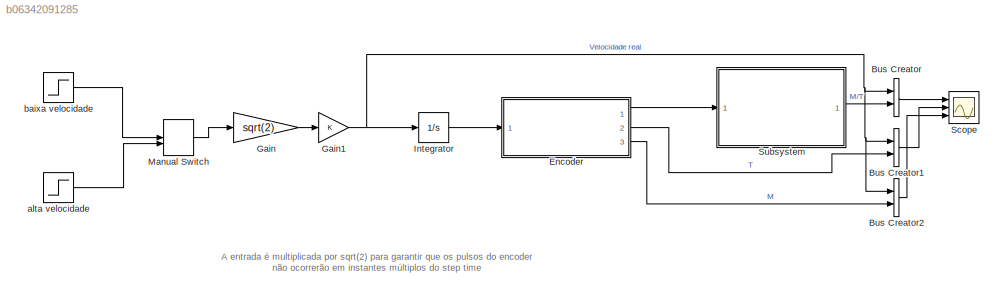
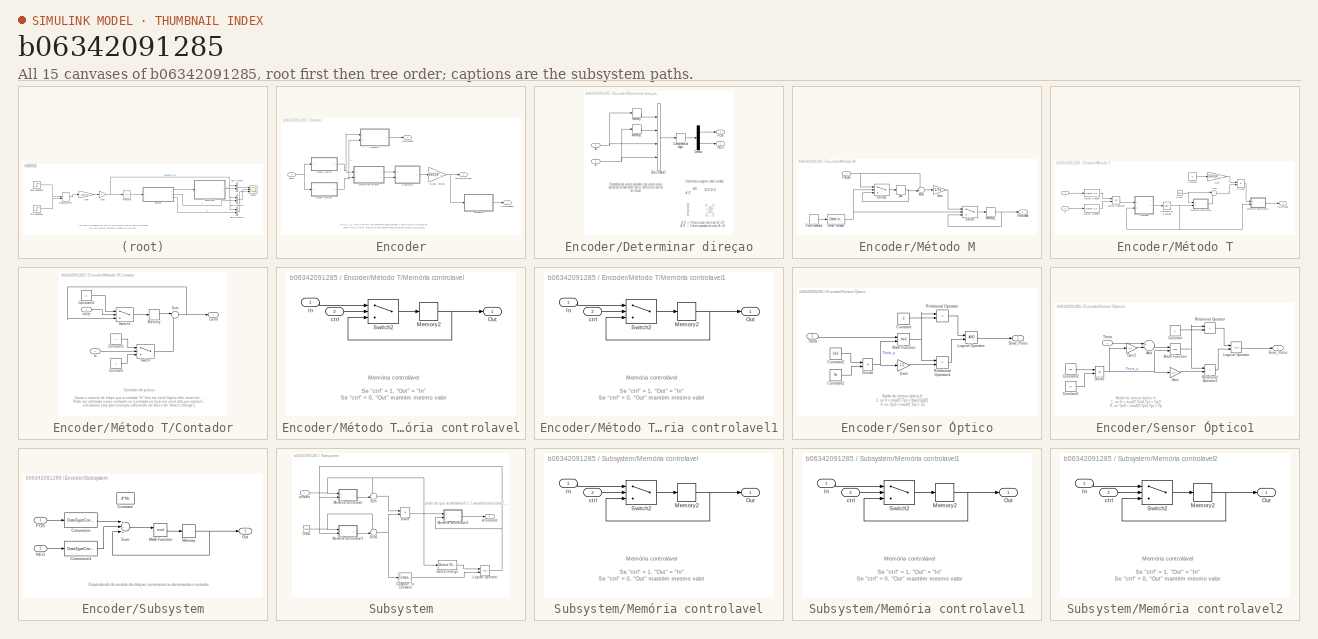
[diagram: thumbnail index - all 15 canvases of the model, root first then tree order]
MODEL slx_b06342091285
KIND model
BLOCK [BusCreator] Bus Creator
  DisplayOption = bar
  Inputs = 2
  Ports = [2, 1]
BLOCK [BusCreator] Bus Creator1
  DisplayOption = bar
  Inputs = 2
  Ports = [2, 1]
BLOCK [BusCreator] Bus Creator2
  DisplayOption = bar
  Inputs = 2
  Ports = [2, 1]
BLOCK [SubSystem] Encoder
  FunctionWithSeparateData = off
  MaskHideContents = off
  MinAlgLoopOccurrences = off
  Opaque = off
  Ports = [1, 3]
  PropExecContextOutsideSubsystem = off
  RTWSystemCode = Auto
  RequestExecContextInheritance = off
BLOCK [SubSystem] Encoder/Determinar direçao
  FunctionWithSeparateData = off
  MaskHideContents = off
  MinAlgLoopOccurrences = off
  Opaque = off
  Ports = [2, 2]
  PropExecContextOutsideSubsystem = off
  RTWSystemCode = Auto
  RequestExecContextInheritance = off
BLOCK [Inport] Encoder/Determinar direçao/A
  IconDisplay = Port number
BLOCK [Inport] Encoder/Determinar direçao/B
  IconDisplay = Port number
  Port = 2
BLOCK [BusCreator] Encoder/Determinar direçao/Bus Creator1
  DisplayOption = bar
  Ports = [4, 1]
BLOCK [CombinatorialLogic] Encoder/Determinar direçao/Combinatorial  Logic
  TruthTable = [ 0 0 ; 0 1 ; 1 0 ; 0 0 ; 1 0 ; 0 0 ; 0 0 ; 0 1 ; 0 1 ; 0 0 ; 0 0 ; 1 0 ; 0 0 ; 1 0 ; 0 1 ; 0 0]
BLOCK [Demux] Encoder/Determinar direçao/Demux
  DisplayOption = bar
  Outputs = 2
  Ports = [1, 2]
BLOCK [Memory] Encoder/Determinar direçao/Memory
BLOCK [Memory] Encoder/Determinar direçao/Memory1
BLOCK [Outport] Encoder/Determinar direçao/NEG
  IconDisplay = Port number
  Port = 2
BLOCK [Outport] Encoder/Determinar direçao/POS
  IconDisplay = Port number
BLOCK [Gain] Encoder/Graus // pulso1
  Gain = 360/(4*Nr)
  OutDataTypeStr = double
  ParamDataTypeStr = Inherit: Inherit via internal rule
  SaturateOnIntegerOverflow = off
BLOCK [SubSystem] Encoder/Método M
  FunctionWithSeparateData = off
  MaskHideContents = off
  MinAlgLoopOccurrences = off
  Opaque = off
  Ports = [1, 1]
  PropExecContextOutsideSubsystem = off
  RTWSystemCode = Auto
  RequestExecContextInheritance = off
BLOCK [Sum] Encoder/Método M/Add
  IconShape = round
  InputSameDT = off
  Inputs = +-|
  OutDataTypeStr = Inherit: Inherit via internal rule
  Ports = [2, 1]
  SaturateOnIntegerOverflow = off
BLOCK [Reference] Encoder/Método M/Detect Increase  REF=simulink/Logic and Bit
Operations/Detect
Increase
  InputProcessing = Inherited
  OutDataTypeStr = boolean
  Ports = [1, 1]
  SourceBlock = simulink/Logic and Bit\nOperations/Detect\nIncrease
  SourceType = Detect Increase
  vinit = 0.0
BLOCK [Gain] Encoder/Método M/Gain
  Gain = 1/Ts
  OutDataTypeStr = Inherit: Inherit via internal rule
  ParamDataTypeStr = Inherit: Inherit via internal rule
  SaturateOnIntegerOverflow = off
BLOCK [Memory] Encoder/Método M/Memory1
BLOCK [Inport] Encoder/Método M/Posição
  IconDisplay = Port number
BLOCK [DiscretePulseGenerator] Encoder/Método M/Pulse Generator
  Period = Ts
  Ports = [0, 1]
  PulseType = Time based
  PulseWidth = 50
BLOCK [Switch] Encoder/Método M/Switch
  InputSameDT = off
  SaturateOnIntegerOverflow = off
BLOCK [Switch] Encoder/Método M/Switch1
  InputSameDT = off
  SaturateOnIntegerOverflow = off
BLOCK [Outport] Encoder/Método M/Velocidade
  IconDisplay = Port number
BLOCK [Memory] Encoder/Método M/pos'
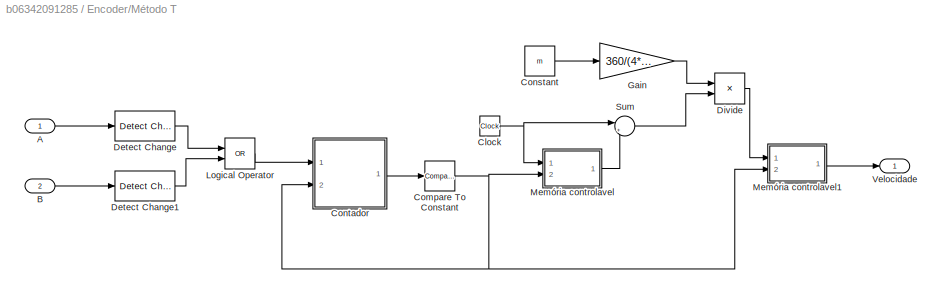
BLOCK [SubSystem] Encoder/Método T
  FunctionWithSeparateData = off
  MaskHideContents = off
  MinAlgLoopOccurrences = off
  Opaque = off
  Ports = [2, 1]
  PropExecContextOutsideSubsystem = off
  RTWSystemCode = Auto
  RequestExecContextInheritance = off
BLOCK [Inport] Encoder/Método T/A
  IconDisplay = Port number
BLOCK [Inport] Encoder/Método T/B
  IconDisplay = Port number
  Port = 2
BLOCK [Clock] Encoder/Método T/Clock
BLOCK [Reference] Encoder/Método T/Compare To Constant  REF=simulink/Logic and Bit
Operations/Compare
To Constant
  OutDataTypeStr = boolean
  Ports = [1, 1]
  SourceBlock = simulink/Logic and Bit\nOperations/Compare\nTo Constant
  SourceType = Compare To Constant
  ZeroCross = on
  const = m
  relop = ==
BLOCK [Constant] Encoder/Método T/Constant
  Value = m
BLOCK [SubSystem] Encoder/Método T/Contador
  FunctionWithSeparateData = off
  MaskHideContents = off
  MinAlgLoopOccurrences = off
  Opaque = off
  Ports = [2, 1]
  PropExecContextOutsideSubsystem = off
  RTWSystemCode = Auto
  RequestExecContextInheritance = off
BLOCK [Constant] Encoder/Método T/Contador/Constant
  Value = 0
BLOCK [Constant] Encoder/Método T/Contador/Constant1
BLOCK [Constant] Encoder/Método T/Contador/Constant2
  Value = 0
BLOCK [Outport] Encoder/Método T/Contador/Count
  IconDisplay = Port number
BLOCK [Inport] Encoder/Método T/Contador/In
  IconDisplay = Port number
BLOCK [Memory] Encoder/Método T/Contador/Memory
BLOCK [Sum] Encoder/Método T/Contador/Sum
  IconShape = round
  InputSameDT = off
  Inputs = |++
  OutDataTypeStr = Inherit: Inherit via internal rule
  Ports = [2, 1]
  SaturateOnIntegerOverflow = off
BLOCK [Switch] Encoder/Método T/Contador/Switch
  InputSameDT = off
  SaturateOnIntegerOverflow = off
BLOCK [Switch] Encoder/Método T/Contador/Switch1
  InputSameDT = off
  SaturateOnIntegerOverflow = off
BLOCK [Inport] Encoder/Método T/Contador/reset
  IconDisplay = Port number
  Port = 2
BLOCK [Reference] Encoder/Método T/Detect Change  REF=simulink/Logic and Bit
Operations/Detect
Change
  InputProcessing = Inherited
  OutDataTypeStr = boolean
  Ports = [1, 1]
  SourceBlock = simulink/Logic and Bit\nOperations/Detect\nChange
  SourceType = Detect Change
  vinit = 0
BLOCK [Reference] Encoder/Método T/Detect Change1  REF=simulink/Logic and Bit
Operations/Detect
Change
  InputProcessing = Inherited
  OutDataTypeStr = boolean
  Ports = [1, 1]
  SourceBlock = simulink/Logic and Bit\nOperations/Detect\nChange
  SourceType = Detect Change
  vinit = 0
BLOCK [Product] Encoder/Método T/Divide
  InputSameDT = off
  Inputs = */
  OutDataTypeStr = Inherit: Inherit via internal rule
  Ports = [2, 1]
  RndMeth = Floor
  SaturateOnIntegerOverflow = off
BLOCK [Gain] Encoder/Método T/Gain
  Gain = 360/(4*Nr)
  OutDataTypeStr = Inherit: Inherit via internal rule
  ParamDataTypeStr = Inherit: Inherit via internal rule
  SaturateOnIntegerOverflow = off
BLOCK [Logic] Encoder/Método T/Logical Operator
  AllPortsSameDT = off
  Operator = OR
  OutDataTypeStr = boolean
  Ports = [2, 1]
BLOCK [SubSystem] Encoder/Método T/Memória controlavel
  FunctionWithSeparateData = off
  MaskHideContents = off
  MinAlgLoopOccurrences = off
  Opaque = off
  Ports = [2, 1]
  PropExecContextOutsideSubsystem = off
  RTWSystemCode = Auto
  RequestExecContextInheritance = off
BLOCK [Inport] Encoder/Método T/Memória controlavel/In
  IconDisplay = Port number
BLOCK [Memory] Encoder/Método T/Memória controlavel/Memory2
BLOCK [Outport] Encoder/Método T/Memória controlavel/Out
  IconDisplay = Port number
BLOCK [Switch] Encoder/Método T/Memória controlavel/Switch2
  InputSameDT = off
  SaturateOnIntegerOverflow = off
BLOCK [Inport] Encoder/Método T/Memória controlavel/ctrl
  IconDisplay = Port number
  Port = 2
BLOCK [SubSystem] Encoder/Método T/Memória controlavel1
  FunctionWithSeparateData = off
  MaskHideContents = off
  MinAlgLoopOccurrences = off
  Opaque = off
  Ports = [2, 1]
  PropExecContextOutsideSubsystem = off
  RTWSystemCode = Auto
  RequestExecContextInheritance = off
BLOCK [Inport] Encoder/Método T/Memória controlavel1/In
  IconDisplay = Port number
BLOCK [Memory] Encoder/Método T/Memória controlavel1/Memory2
BLOCK [Outport] Encoder/Método T/Memória controlavel1/Out
  IconDisplay = Port number
BLOCK [Switch] Encoder/Método T/Memória controlavel1/Switch2
  InputSameDT = off
  SaturateOnIntegerOverflow = off
BLOCK [Inport] Encoder/Método T/Memória controlavel1/ctrl
  IconDisplay = Port number
  Port = 2
BLOCK [Sum] Encoder/Método T/Sum
  IconShape = round
  InputSameDT = off
  Inputs = |+-
  OutDataTypeStr = Inherit: Inherit via internal rule
  Ports = [2, 1]
  SaturateOnIntegerOverflow = off
BLOCK [Outport] Encoder/Método T/Velocidade
  IconDisplay = Port number
BLOCK [SubSystem] Encoder/Sensor Óptico
  FunctionWithSeparateData = off
  MaskHideContents = off
  MinAlgLoopOccurrences = off
  Opaque = off
  Ports = [1, 1]
  PropExecContextOutsideSubsystem = off
  RTWSystemCode = Auto
  RequestExecContextInheritance = off
BLOCK [Constant] Encoder/Sensor Óptico/Constant
  Value = 0
BLOCK [Constant] Encoder/Sensor Óptico/Constant1
  Value = Nr
BLOCK [Constant] Encoder/Sensor Óptico/Constant2
  Value = 360
BLOCK [Product] Encoder/Sensor Óptico/Divide
  InputSameDT = off
  Inputs = */
  OutDataTypeStr = Inherit: Inherit via internal rule
  Ports = [2, 1]
  RndMeth = Floor
  SaturateOnIntegerOverflow = off
BLOCK [Gain] Encoder/Sensor Óptico/Gain
  Gain = 1/2
  OutDataTypeStr = Inherit: Inherit via internal rule
  ParamDataTypeStr = Inherit: Inherit via internal rule
  SaturateOnIntegerOverflow = off
BLOCK [Logic] Encoder/Sensor Óptico/Logical Operator
  AllPortsSameDT = off
  OutDataTypeStr = boolean
  Ports = [2, 1]
BLOCK [Math] Encoder/Sensor Óptico/Math Function
  Operator = mod
  Ports = [2, 1]
BLOCK [RelationalOperator] Encoder/Sensor Óptico/Relational Operator
  InputSameDT = off
  Operator = >
  OutDataTypeStr = boolean
  Ports = [2, 1]
BLOCK [RelationalOperator] Encoder/Sensor Óptico/Relational Operator1
  InputSameDT = off
  Operator = <
  OutDataTypeStr = boolean
  Ports = [2, 1]
BLOCK [Outport] Encoder/Sensor Óptico/Sinal_Pulso
  IconDisplay = Port number
BLOCK [Inport] Encoder/Sensor Óptico/Theta
  IconDisplay = Port number
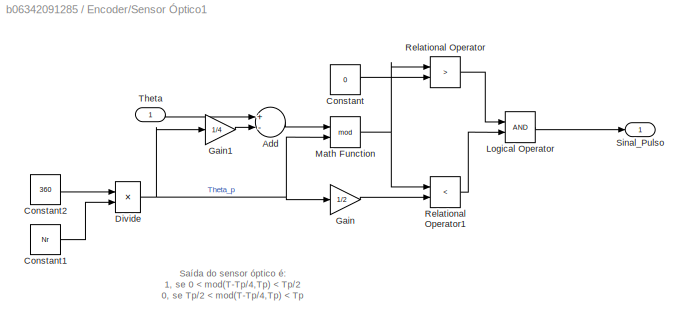
BLOCK [SubSystem] Encoder/Sensor Óptico1
  FunctionWithSeparateData = off
  MaskHideContents = off
  MinAlgLoopOccurrences = off
  Opaque = off
  Ports = [1, 1]
  PropExecContextOutsideSubsystem = off
  RTWSystemCode = Auto
  RequestExecContextInheritance = off
BLOCK [Sum] Encoder/Sensor Óptico1/Add
  InputSameDT = off
  Inputs = +-
  OutDataTypeStr = Inherit: Inherit via internal rule
  Ports = [2, 1]
  SaturateOnIntegerOverflow = off
BLOCK [Constant] Encoder/Sensor Óptico1/Constant
  Value = 0
BLOCK [Constant] Encoder/Sensor Óptico1/Constant1
  Value = Nr
BLOCK [Constant] Encoder/Sensor Óptico1/Constant2
  Value = 360
BLOCK [Product] Encoder/Sensor Óptico1/Divide
  InputSameDT = off
  Inputs = */
  OutDataTypeStr = Inherit: Inherit via internal rule
  Ports = [2, 1]
  RndMeth = Floor
  SaturateOnIntegerOverflow = off
BLOCK [Gain] Encoder/Sensor Óptico1/Gain
  Gain = 1/2
  OutDataTypeStr = Inherit: Inherit via internal rule
  ParamDataTypeStr = Inherit: Inherit via internal rule
  SaturateOnIntegerOverflow = off
BLOCK [Gain] Encoder/Sensor Óptico1/Gain1
  Gain = 1/4
  OutDataTypeStr = Inherit: Inherit via internal rule
  ParamDataTypeStr = Inherit: Inherit via internal rule
  SaturateOnIntegerOverflow = off
BLOCK [Logic] Encoder/Sensor Óptico1/Logical Operator
  AllPortsSameDT = off
  OutDataTypeStr = boolean
  Ports = [2, 1]
BLOCK [Math] Encoder/Sensor Óptico1/Math Function
  Operator = mod
  Ports = [2, 1]
BLOCK [RelationalOperator] Encoder/Sensor Óptico1/Relational Operator
  InputSameDT = off
  Operator = >
  OutDataTypeStr = boolean
  Ports = [2, 1]
BLOCK [RelationalOperator] Encoder/Sensor Óptico1/Relational Operator1
  InputSameDT = off
  Operator = <
  OutDataTypeStr = boolean
  Ports = [2, 1]
BLOCK [Outport] Encoder/Sensor Óptico1/Sinal_Pulso
  IconDisplay = Port number
BLOCK [Inport] Encoder/Sensor Óptico1/Theta
  IconDisplay = Port number
BLOCK [SubSystem] Encoder/Subsystem
  FunctionWithSeparateData = off
  MaskHideContents = off
  MinAlgLoopOccurrences = off
  Opaque = off
  Ports = [2, 1]
  PropExecContextOutsideSubsystem = off
  RTWSystemCode = Auto
  RequestExecContextInheritance = off
BLOCK [Constant] Encoder/Subsystem/Constant
  Value = 4*Nr
BLOCK [DataTypeConversion] Encoder/Subsystem/Conversion
  OutDataTypeStr = int32
  RndMeth = Floor
  SaturateOnIntegerOverflow = off
BLOCK [DataTypeConversion] Encoder/Subsystem/Conversion1
  OutDataTypeStr = int32
  RndMeth = Floor
  SaturateOnIntegerOverflow = off
BLOCK [Math] Encoder/Subsystem/Math Function
  Operator = mod
  Ports = [2, 1]
BLOCK [Memory] Encoder/Subsystem/Memory
BLOCK [Inport] Encoder/Subsystem/NEG
  IconDisplay = Port number
  Port = 2
BLOCK [Outport] Encoder/Subsystem/Out
  IconDisplay = Port number
BLOCK [Inport] Encoder/Subsystem/POS
  IconDisplay = Port number
BLOCK [Sum] Encoder/Subsystem/Sum
  InputSameDT = off
  Inputs = +-+
  OutDataTypeStr = Inherit: Inherit via internal rule
  Ports = [3, 1]
  SaturateOnIntegerOverflow = off
BLOCK [Inport] Encoder/Theta
  IconDisplay = Port number
BLOCK [Outport] Encoder/Theta_amostrado
  IconDisplay = Port number
BLOCK [Outport] Encoder/VelocidadeM
  IconDisplay = Port number
  Port = 3
BLOCK [Outport] Encoder/VelocidadeT
  IconDisplay = Port number
  Port = 2
BLOCK [Gain] Gain
  Gain = sqrt(2)
  OutDataTypeStr = Inherit: Inherit via internal rule
  ParamDataTypeStr = Inherit: Inherit via internal rule
  SaturateOnIntegerOverflow = off
BLOCK [Gain] Gain1
  OutDataTypeStr = Inherit: Inherit via internal rule
  ParamDataTypeStr = Inherit: Inherit via internal rule
  SaturateOnIntegerOverflow = off
BLOCK [Integrator] Integrator
  Ports = [1, 1]
BLOCK [ManualSwitch] Manual Switch
  CurrentSetting = 0
BLOCK [Scope] Scope
  DataFormat = StructureWithTime
  Floating = off
  LegendLocations = 0.9274     0.90978    0.081875     0.04439\n0.9274     0.59536    0.081875     0.04439\n0.9274     0.28216    0.081875     0.04439
  LimitDataPoints = off
  NumInputPorts = 3
  Ports = [3]
  SampleTime = 0
  ShowLegends = on
  TickLabels = on
  YMax = 14.2~14.2~14.2
  YMin = 14.1~14.1~14.1
  ZoomMode = yonly
BLOCK [SubSystem] Subsystem
  FunctionWithSeparateData = off
  MaskHideContents = off
  MinAlgLoopOccurrences = off
  Opaque = off
  Ports = [1, 1]
  PropExecContextOutsideSubsystem = off
  RTWSystemCode = Auto
  RequestExecContextInheritance = off
BLOCK [Clock] Subsystem/Clock
BLOCK [Reference] Subsystem/Compare To Constant  REF=simulink/Logic and Bit
Operations/Compare
To Constant
  OutDataTypeStr = boolean
  Ports = [1, 1]
  SourceBlock = simulink/Logic and Bit\nOperations/Compare\nTo Constant
  SourceType = Compare To Constant
  ZeroCross = on
  const = Ts
  relop = >=
BLOCK [Reference] Subsystem/Detect Change  REF=simulink/Logic and Bit
Operations/Detect
Change
  InputProcessing = Inherited
  OutDataTypeStr = boolean
  Ports = [1, 1]
  SourceBlock = simulink/Logic and Bit\nOperations/Detect\nChange
  SourceType = Detect Change
  vinit = 0
BLOCK [Product] Subsystem/Divide
  InputSameDT = off
  Inputs = */
  OutDataTypeStr = Inherit: Inherit via internal rule
  Ports = [2, 1]
  RndMeth = Floor
  SaturateOnIntegerOverflow = off
BLOCK [Logic] Subsystem/Logical Operator
  AllPortsSameDT = off
  OutDataTypeStr = boolean
  Ports = [2, 1]
BLOCK [SubSystem] Subsystem/Memória controlavel
  FunctionWithSeparateData = off
  MaskHideContents = off
  MinAlgLoopOccurrences = off
  Opaque = off
  Ports = [2, 1]
  PropExecContextOutsideSubsystem = off
  RTWSystemCode = Auto
  RequestExecContextInheritance = off
BLOCK [Inport] Subsystem/Memória controlavel/In
  IconDisplay = Port number
BLOCK [Memory] Subsystem/Memória controlavel/Memory2
BLOCK [Outport] Subsystem/Memória controlavel/Out
  IconDisplay = Port number
BLOCK [Switch] Subsystem/Memória controlavel/Switch2
  InputSameDT = off
  SaturateOnIntegerOverflow = off
BLOCK [Inport] Subsystem/Memória controlavel/ctrl
  IconDisplay = Port number
  Port = 2
BLOCK [SubSystem] Subsystem/Memória controlavel1
  FunctionWithSeparateData = off
  MaskHideContents = off
  MinAlgLoopOccurrences = off
  Opaque = off
  Ports = [2, 1]
  PropExecContextOutsideSubsystem = off
  RTWSystemCode = Auto
  RequestExecContextInheritance = off
BLOCK [Inport] Subsystem/Memória controlavel1/In
  IconDisplay = Port number
BLOCK [Memory] Subsystem/Memória controlavel1/Memory2
BLOCK [Outport] Subsystem/Memória controlavel1/Out
  IconDisplay = Port number
BLOCK [Switch] Subsystem/Memória controlavel1/Switch2
  InputSameDT = off
  SaturateOnIntegerOverflow = off
BLOCK [Inport] Subsystem/Memória controlavel1/ctrl
  IconDisplay = Port number
  Port = 2
BLOCK [SubSystem] Subsystem/Memória controlavel2
  FunctionWithSeparateData = off
  MaskHideContents = off
  MinAlgLoopOccurrences = off
  Opaque = off
  Ports = [2, 1]
  PropExecContextOutsideSubsystem = off
  RTWSystemCode = Auto
  RequestExecContextInheritance = off
BLOCK [Inport] Subsystem/Memória controlavel2/In
  IconDisplay = Port number
BLOCK [Memory] Subsystem/Memória controlavel2/Memory2
BLOCK [Outport] Subsystem/Memória controlavel2/Out
  IconDisplay = Port number
BLOCK [Switch] Subsystem/Memória controlavel2/Switch2
  InputSameDT = off
  SaturateOnIntegerOverflow = off
BLOCK [Inport] Subsystem/Memória controlavel2/ctrl
  IconDisplay = Port number
  Port = 2
BLOCK [Sum] Subsystem/Sum
  IconShape = round
  InputSameDT = off
  Inputs = +-|
  OutDataTypeStr = Inherit: Inherit via internal rule
  Ports = [2, 1]
  SaturateOnIntegerOverflow = off
BLOCK [Sum] Subsystem/Sum1
  IconShape = round
  InputSameDT = off
  Inputs = +-|
  OutDataTypeStr = Inherit: Inherit via internal rule
  Ports = [2, 1]
  SaturateOnIntegerOverflow = off
BLOCK [Inport] Subsystem/posicao
  IconDisplay = Port number
BLOCK [Outport] Subsystem/velocidade
  IconDisplay = Port number
BLOCK [Step] alta velocidade
  After = 8000
  SampleTime = 0
  Time = 0
BLOCK [Step] baixa velocidade
  After = 10
  SampleTime = 0
  Time = 0
ANNOTATION (root): A entrada é multiplicada por sqrt(2) para garantir que os pulsos do encoder não ocorrerão em instantes múltiplos do step time
ANNOTATION Encoder: ATENÇÃO: Para o correto funcionamento desse encoder o step size da simulação deve ser menor do que 360/(4*Nr*Vmax), onde Vmax é o valor máximo da derivada do Theta atigindo durante a simulação
ANNOTATION Encoder/Determinar direçao: 0 - + 0 + 0 0 - - 0 0 + 0 + - 0
ANNOTATION Encoder/Determinar direçao: 00 01 10 11
ANNOTATION Encoder/Determinar direçao: A'B'
ANNOTATION Encoder/Determinar direçao: A,B = Valores atuais dos sinais A e B A'B' = Valores passados do sinais A e B
ANNOTATION Encoder/Determinar direçao: AB
ANNOTATION Encoder/Determinar direçao: Dependendo dos valores passados e dos valores atuais dos pulsos de cada sensor óptico, determina o sentido de rotaçao.
ANNOTATION Encoder/Determinar direçao: Implementa a seguinte tabela verdade:
ANNOTATION Encoder/Método T/Contador: Contador de pulsos Conta o número de steps que a entrada "In" fica em nível lógico alto; reset em 1 zera. Pode ser utilizado como contador se a entrada so ficar em nível alto por somente um simulation step (por exemplo utilizando um bloco de "detect change").
ANNOTATION Encoder/Método T/Memória controlavel: Memória controlável Se "ctrl" = 1, "Out" = "In" Se "ctrl" = 0, "Out" mantém mesmo valor
ANNOTATION Encoder/Método T/Memória controlavel1: Memória controlável Se "ctrl" = 1, "Out" = "In" Se "ctrl" = 0, "Out" mantém mesmo valor
ANNOTATION Encoder/Sensor Óptico: Saída do sensor óptico é: 1, se 0 < mod(T,Tp) < \frac{Tp}{2} 0, se Tp/2 < mod(T,Tp) < Tp
ANNOTATION Encoder/Sensor Óptico1: Saída do sensor óptico é: 1, se 0 < mod(T-Tp/4,Tp) < Tp/2 0, se Tp/2 < mod(T-Tp/4,Tp) < Tp
ANNOTATION Encoder/Subsystem: Dependendo do sentido da rotaçao, incrementa ou decrementa o contador
ANNOTATION Subsystem: pode ser que as memórias 0 e 1 atualizem antes da 2....
ANNOTATION Subsystem/Memória controlavel: Memória controlável Se "ctrl" = 1, "Out" = "In" Se "ctrl" = 0, "Out" mantém mesmo valor
ANNOTATION Subsystem/Memória controlavel1: Memória controlável Se "ctrl" = 1, "Out" = "In" Se "ctrl" = 0, "Out" mantém mesmo valor
ANNOTATION Subsystem/Memória controlavel2: Memória controlável Se "ctrl" = 1, "Out" = "In" Se "ctrl" = 0, "Out" mantém mesmo valor
LINE Bus Creator1:1 -> Scope:2
LINE Bus Creator2:1 -> Scope:3
LINE Bus Creator:1 -> Scope:1
NET Encoder/Determinar direçao/A:1 -> Encoder/Determinar direçao/Bus Creator1:3, Encoder/Determinar direçao/Memory:1
NET Encoder/Determinar direçao/B:1 -> Encoder/Determinar direçao/Bus Creator1:4, Encoder/Determinar direçao/Memory1:1
LINE Encoder/Determinar direçao/Bus Creator1:1 -> Encoder/Determinar direçao/Combinatorial  Logic:1
LINE Encoder/Determinar direçao/Combinatorial  Logic:1 -> Encoder/Determinar direçao/Demux:1
LINE Encoder/Determinar direçao/Demux:1 -> Encoder/Determinar direçao/POS:1
LINE Encoder/Determinar direçao/Demux:2 -> Encoder/Determinar direçao/NEG:1
LINE Encoder/Determinar direçao/Memory1:1 -> Encoder/Determinar direçao/Bus Creator1:2
LINE Encoder/Determinar direçao/Memory:1 -> Encoder/Determinar direçao/Bus Creator1:1
LINE Encoder/Determinar direçao:1 -> Encoder/Subsystem:1
LINE Encoder/Determinar direçao:2 -> Encoder/Subsystem:2
NET Encoder/Graus // pulso1:1 -> Encoder/Método M:1, Encoder/Theta_amostrado:1
LINE Encoder/Método M/Add:1 -> Encoder/Método M/Gain:1
NET Encoder/Método M/Detect Increase:1 -> Encoder/Método M/Switch1:2, Encoder/Método M/Switch:2
LINE Encoder/Método M/Gain:1 -> Encoder/Método M/Switch:1
NET Encoder/Método M/Memory1:1 -> Encoder/Método M/Switch:3, Encoder/Método M/Velocidade:1
NET Encoder/Método M/Posição:1 -> Encoder/Método M/Add:1, Encoder/Método M/Switch1:1
LINE Encoder/Método M/Pulse Generator:1 -> Encoder/Método M/Detect Increase:1
LINE Encoder/Método M/Switch1:1 -> Encoder/Método M/pos':1
LINE Encoder/Método M/Switch:1 -> Encoder/Método M/Memory1:1
NET Encoder/Método M/pos':1 -> Encoder/Método M/Add:2, Encoder/Método M/Switch1:3
LINE Encoder/Método M:1 -> Encoder/VelocidadeM:1
LINE Encoder/Método T/A:1 -> Encoder/Método T/Detect Change:1
LINE Encoder/Método T/B:1 -> Encoder/Método T/Detect Change1:1
NET Encoder/Método T/Clock:1 -> Encoder/Método T/Memória controlavel:1, Encoder/Método T/Sum:1
NET Encoder/Método T/Compare To Constant:1 -> Encoder/Método T/Contador:2, Encoder/Método T/Memória controlavel1:2, Encoder/Método T/Memória controlavel:2
LINE Encoder/Método T/Constant:1 -> Encoder/Método T/Gain:1
LINE Encoder/Método T/Contador/Constant1:1 -> Encoder/Método T/Contador/Switch:1
LINE Encoder/Método T/Contador/Constant2:1 -> Encoder/Método T/Contador/Switch1:1
LINE Encoder/Método T/Contador/Constant:1 -> Encoder/Método T/Contador/Switch:3
LINE Encoder/Método T/Contador/In:1 -> Encoder/Método T/Contador/Switch:2
LINE Encoder/Método T/Contador/Memory:1 -> Encoder/Método T/Contador/Sum:1
NET Encoder/Método T/Contador/Sum:1 -> Encoder/Método T/Contador/Count:1, Encoder/Método T/Contador/Switch1:3
LINE Encoder/Método T/Contador/Switch1:1 -> Encoder/Método T/Contador/Memory:1
LINE Encoder/Método T/Contador/Switch:1 -> Encoder/Método T/Contador/Sum:2
LINE Encoder/Método T/Contador/reset:1 -> Encoder/Método T/Contador/Switch1:2
LINE Encoder/Método T/Contador:1 -> Encoder/Método T/Compare To Constant:1
LINE Encoder/Método T/Detect Change1:1 -> Encoder/Método T/Logical Operator:2
LINE Encoder/Método T/Detect Change:1 -> Encoder/Método T/Logical Operator:1
LINE Encoder/Método T/Divide:1 -> Encoder/Método T/Memória controlavel1:1
LINE Encoder/Método T/Gain:1 -> Encoder/Método T/Divide:1
LINE Encoder/Método T/Logical Operator:1 -> Encoder/Método T/Contador:1
LINE Encoder/Método T/Memória controlavel/In:1 -> Encoder/Método T/Memória controlavel/Switch2:1
NET Encoder/Método T/Memória controlavel/Memory2:1 -> Encoder/Método T/Memória controlavel/Out:1, Encoder/Método T/Memória controlavel/Switch2:3
LINE Encoder/Método T/Memória controlavel/Switch2:1 -> Encoder/Método T/Memória controlavel/Memory2:1
LINE Encoder/Método T/Memória controlavel/ctrl:1 -> Encoder/Método T/Memória controlavel/Switch2:2
LINE Encoder/Método T/Memória controlavel1/In:1 -> Encoder/Método T/Memória controlavel1/Switch2:1
NET Encoder/Método T/Memória controlavel1/Memory2:1 -> Encoder/Método T/Memória controlavel1/Out:1, Encoder/Método T/Memória controlavel1/Switch2:3
LINE Encoder/Método T/Memória controlavel1/Switch2:1 -> Encoder/Método T/Memória controlavel1/Memory2:1
LINE Encoder/Método T/Memória controlavel1/ctrl:1 -> Encoder/Método T/Memória controlavel1/Switch2:2
LINE Encoder/Método T/Memória controlavel1:1 -> Encoder/Método T/Velocidade:1
LINE Encoder/Método T/Memória controlavel:1 -> Encoder/Método T/Sum:2
LINE Encoder/Método T/Sum:1 -> Encoder/Método T/Divide:2
LINE Encoder/Método T:1 -> Encoder/VelocidadeT:1
LINE Encoder/Sensor Óptico/Constant1:1 -> Encoder/Sensor Óptico/Divide:2
LINE Encoder/Sensor Óptico/Constant2:1 -> Encoder/Sensor Óptico/Divide:1
LINE Encoder/Sensor Óptico/Constant:1 -> Encoder/Sensor Óptico/Relational Operator:2
NET Encoder/Sensor Óptico/Divide:1 -> Encoder/Sensor Óptico/Gain:1, Encoder/Sensor Óptico/Math Function:2
LINE Encoder/Sensor Óptico/Gain:1 -> Encoder/Sensor Óptico/Relational Operator1:2
LINE Encoder/Sensor Óptico/Logical Operator:1 -> Encoder/Sensor Óptico/Sinal_Pulso:1
NET Encoder/Sensor Óptico/Math Function:1 -> Encoder/Sensor Óptico/Relational Operator1:1, Encoder/Sensor Óptico/Relational Operator:1
LINE Encoder/Sensor Óptico/Relational Operator1:1 -> Encoder/Sensor Óptico/Logical Operator:2
LINE Encoder/Sensor Óptico/Relational Operator:1 -> Encoder/Sensor Óptico/Logical Operator:1
LINE Encoder/Sensor Óptico/Theta:1 -> Encoder/Sensor Óptico/Math Function:1
LINE Encoder/Sensor Óptico1/Add:1 -> Encoder/Sensor Óptico1/Math Function:1
LINE Encoder/Sensor Óptico1/Constant1:1 -> Encoder/Sensor Óptico1/Divide:2
LINE Encoder/Sensor Óptico1/Constant2:1 -> Encoder/Sensor Óptico1/Divide:1
LINE Encoder/Sensor Óptico1/Constant:1 -> Encoder/Sensor Óptico1/Relational Operator:2
NET Encoder/Sensor Óptico1/Divide:1 -> Encoder/Sensor Óptico1/Gain1:1, Encoder/Sensor Óptico1/Gain:1, Encoder/Sensor Óptico1/Math Function:2
LINE Encoder/Sensor Óptico1/Gain1:1 -> Encoder/Sensor Óptico1/Add:2
LINE Encoder/Sensor Óptico1/Gain:1 -> Encoder/Sensor Óptico1/Relational Operator1:2
LINE Encoder/Sensor Óptico1/Logical Operator:1 -> Encoder/Sensor Óptico1/Sinal_Pulso:1
NET Encoder/Sensor Óptico1/Math Function:1 -> Encoder/Sensor Óptico1/Relational Operator1:1, Encoder/Sensor Óptico1/Relational Operator:1
LINE Encoder/Sensor Óptico1/Relational Operator1:1 -> Encoder/Sensor Óptico1/Logical Operator:2
LINE Encoder/Sensor Óptico1/Relational Operator:1 -> Encoder/Sensor Óptico1/Logical Operator:1
LINE Encoder/Sensor Óptico1/Theta:1 -> Encoder/Sensor Óptico1/Add:1
NET Encoder/Sensor Óptico1:1 -> Encoder/Determinar direçao:2, Encoder/Método T:2
NET Encoder/Sensor Óptico:1 -> Encoder/Determinar direçao:1, Encoder/Método T:1
LINE Encoder/Subsystem/Conversion1:1 -> Encoder/Subsystem/Sum:2
LINE Encoder/Subsystem/Conversion:1 -> Encoder/Subsystem/Sum:1
LINE Encoder/Subsystem/Math Function:1 -> Encoder/Subsystem/Memory:1
NET Encoder/Subsystem/Memory:1 -> Encoder/Subsystem/Out:1, Encoder/Subsystem/Sum:3
LINE Encoder/Subsystem/NEG:1 -> Encoder/Subsystem/Conversion1:1
LINE Encoder/Subsystem/POS:1 -> Encoder/Subsystem/Conversion:1
LINE Encoder/Subsystem/Sum:1 -> Encoder/Subsystem/Math Function:1
LINE Encoder/Subsystem:1 -> Encoder/Graus // pulso1:1
NET Encoder/Theta:1 -> Encoder/Sensor Óptico1:1, Encoder/Sensor Óptico:1
LINE Encoder:1 -> Subsystem:1
LINE Encoder:2 -> Bus Creator1:2
LINE Encoder:3 -> Bus Creator2:2
NET Gain1:1 -> Bus Creator1:1, Bus Creator2:1, Bus Creator:1, Integrator:1
LINE Gain:1 -> Gain1:1
LINE Integrator:1 -> Encoder:1
LINE Manual Switch:1 -> Gain:1
NET Subsystem/Clock:1 -> Subsystem/Memória controlavel1:1, Subsystem/Sum1:1
LINE Subsystem/Compare To Constant:1 -> Subsystem/Logical Operator:2
LINE Subsystem/Detect Change:1 -> Subsystem/Logical Operator:1
LINE Subsystem/Divide:1 -> Subsystem/Memória controlavel2:1
NET Subsystem/Logical Operator:1 -> Subsystem/Memória controlavel1:2, Subsystem/Memória controlavel2:2, Subsystem/Memória controlavel:2
LINE Subsystem/Memória controlavel/In:1 -> Subsystem/Memória controlavel/Switch2:1
NET Subsystem/Memória controlavel/Memory2:1 -> Subsystem/Memória controlavel/Out:1, Subsystem/Memória controlavel/Switch2:3
LINE Subsystem/Memória controlavel/Switch2:1 -> Subsystem/Memória controlavel/Memory2:1
LINE Subsystem/Memória controlavel/ctrl:1 -> Subsystem/Memória controlavel/Switch2:2
LINE Subsystem/Memória controlavel1/In:1 -> Subsystem/Memória controlavel1/Switch2:1
NET Subsystem/Memória controlavel1/Memory2:1 -> Subsystem/Memória controlavel1/Out:1, Subsystem/Memória controlavel1/Switch2:3
LINE Subsystem/Memória controlavel1/Switch2:1 -> Subsystem/Memória controlavel1/Memory2:1
LINE Subsystem/Memória controlavel1/ctrl:1 -> Subsystem/Memória controlavel1/Switch2:2
LINE Subsystem/Memória controlavel1:1 -> Subsystem/Sum1:2
LINE Subsystem/Memória controlavel2/In:1 -> Subsystem/Memória controlavel2/Switch2:1
NET Subsystem/Memória controlavel2/Memory2:1 -> Subsystem/Memória controlavel2/Out:1, Subsystem/Memória controlavel2/Switch2:3
LINE Subsystem/Memória controlavel2/Switch2:1 -> Subsystem/Memória controlavel2/Memory2:1
LINE Subsystem/Memória controlavel2/ctrl:1 -> Subsystem/Memória controlavel2/Switch2:2
LINE Subsystem/Memória controlavel2:1 -> Subsystem/velocidade:1
LINE Subsystem/Memória controlavel:1 -> Subsystem/Sum:2
NET Subsystem/Sum1:1 -> Subsystem/Compare To Constant:1, Subsystem/Divide:2
LINE Subsystem/Sum:1 -> Subsystem/Divide:1
NET Subsystem/posicao:1 -> Subsystem/Detect Change:1, Subsystem/Memória controlavel:1, Subsystem/Sum:1
LINE Subsystem:1 -> Bus Creator:2
LINE alta velocidade:1 -> Manual Switch:2
LINE baixa velocidade:1 -> Manual Switch:1
note: NET lines group one-source signal fan-out (src -> all destinations, sorted); 1:1 wires keep LINE
